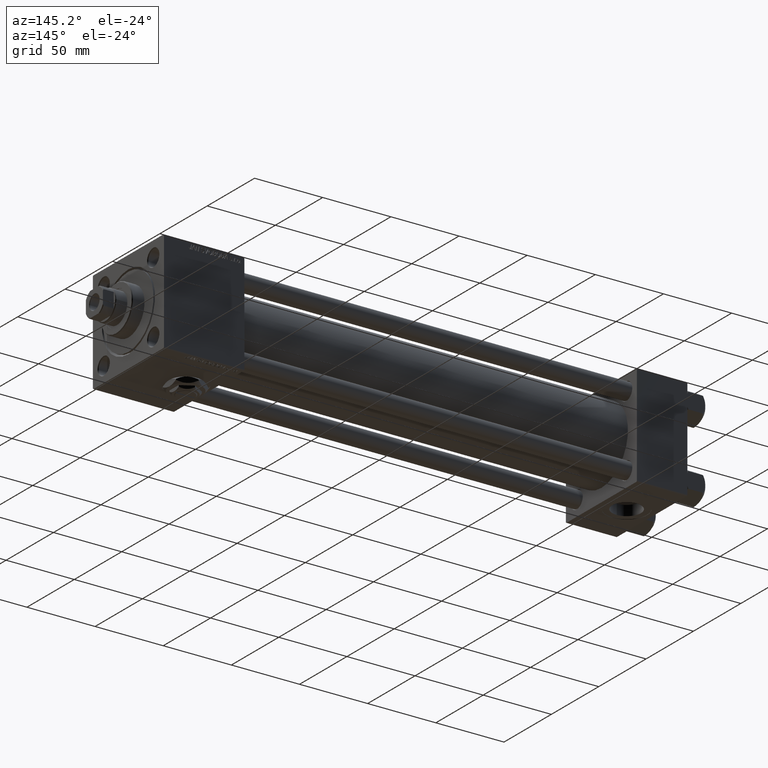
[diagram: clean part render]
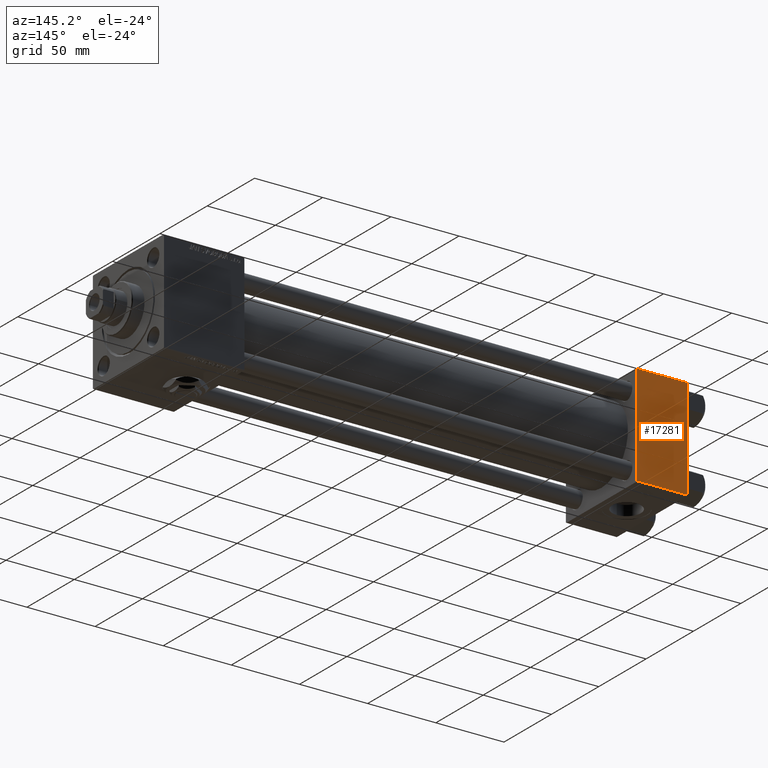
[diagram: same view with one face highlighted and labeled with its STEP entity id]
A machine part, auxiliary view. The second image highlights one B-rep face of the part: STEP entity #17281.
In plain terms, the highlighted planar face has unit normal (0, 1, 0).
Its self-contained STEP definition (entity closure, byte-faithful):
#1085 = CARTESIAN_POINT ( 'NONE',  ( 37.00000000000000000, 37.49999999999999289, 37.00000000000000000 ) ) ;
#2718 = LINE ( 'NONE', #18571, #9725 ) ;
#3434 = CARTESIAN_POINT ( 'NONE',  ( 37.00000000000000000, 37.49999999999999289, 37.50000000000000000 ) ) ;
#4547 = EDGE_CURVE ( 'NONE', #36002, #32311, #15408, .T. ) ;
#8282 = EDGE_CURVE ( 'NONE', #36002, #36701, #46597, .T. ) ;
#9725 = VECTOR ( 'NONE', #22007, 1000.000000000000000 ) ;
#9858 = EDGE_LOOP ( 'NONE', ( #45975, #18279, #11970, #12046 ) ) ;
#10417 = CARTESIAN_POINT ( 'NONE',  ( 37.00000000000000000, 37.49999999999999289, 37.00000000000000000 ) ) ;
#11106 = DIRECTION ( 'NONE',  ( -0.000000000000000000, 1.000000000000000000, 0.000000000000000000 ) ) ;
#11691 = VERTEX_POINT ( 'NONE', #20595 ) ;
#11711 = CARTESIAN_POINT ( 'NONE',  ( 0.000000000000000000, 37.49999999999999289, 37.50000000000000000 ) ) ;
#11970 = ORIENTED_EDGE ( 'NONE', *, *, #4547, .F. ) ;
#12046 = ORIENTED_EDGE ( 'NONE', *, *, #8282, .T. ) ;
#12150 = CARTESIAN_POINT ( 'NONE',  ( 37.00000000000000000, 37.49999999999999289, 37.50000000000000000 ) ) ;
#13046 = EDGE_CURVE ( 'NONE', #11691, #32311, #2718, .T. ) ;
#14866 = AXIS2_PLACEMENT_3D ( 'NONE', #12150, #11106, #28252 ) ;
#15326 = LINE ( 'NONE', #3434, #45271 ) ;
#15408 = LINE ( 'NONE', #11711, #28063 ) ;
#15587 = PLANE ( 'NONE',  #14866 ) ;
#17281 = ADVANCED_FACE ( 'NONE', ( #43595 ), #15587, .T. ) ;
#17326 = EDGE_CURVE ( 'NONE', #36701, #11691, #15326, .T. ) ;
#18279 = ORIENTED_EDGE ( 'NONE', *, *, #13046, .T. ) ;
#18571 = CARTESIAN_POINT ( 'NONE',  ( 37.00000000000000000, 37.49999999999999289, -36.99999999999998579 ) ) ;
#20595 = CARTESIAN_POINT ( 'NONE',  ( 37.00000000000000000, 37.49999999999999289, -36.99999999999998579 ) ) ;
#22007 = DIRECTION ( 'NONE',  ( -1.000000000000000000, 0.000000000000000000, 0.000000000000000000 ) ) ;
#26520 = DIRECTION ( 'NONE',  ( 1.000000000000000000, 0.000000000000000000, 0.000000000000000000 ) ) ;
#28063 = VECTOR ( 'NONE', #51351, 1000.000000000000000 ) ;
#28252 = DIRECTION ( 'NONE',  ( 0.000000000000000000, -0.000000000000000000, 1.000000000000000000 ) ) ;
#31438 = DIRECTION ( 'NONE',  ( 0.000000000000000000, 0.000000000000000000, -1.000000000000000000 ) ) ;
#32311 = VERTEX_POINT ( 'NONE', #32424 ) ;
#32424 = CARTESIAN_POINT ( 'NONE',  ( 0.000000000000000000, 37.49999999999999289, -36.99999999999998579 ) ) ;
#35329 = CARTESIAN_POINT ( 'NONE',  ( 0.000000000000000000, 37.49999999999999289, 37.00000000000000000 ) ) ;
#36002 = VERTEX_POINT ( 'NONE', #35329 ) ;
#36701 = VERTEX_POINT ( 'NONE', #1085 ) ;
#40862 = VECTOR ( 'NONE', #26520, 1000.000000000000000 ) ;
#43595 = FACE_OUTER_BOUND ( 'NONE', #9858, .T. ) ;
#45271 = VECTOR ( 'NONE', #31438, 1000.000000000000000 ) ;
#45975 = ORIENTED_EDGE ( 'NONE', *, *, #17326, .T. ) ;
#46597 = LINE ( 'NONE', #10417, #40862 ) ;
#51351 = DIRECTION ( 'NONE',  ( 0.000000000000000000, 0.000000000000000000, -1.000000000000000000 ) ) ;